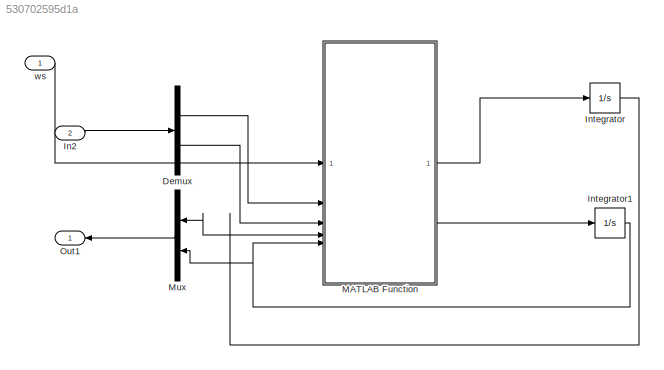
MODEL slx_530702595d1a
KIND model
CONFIG AbsTol = auto
CONFIG EnableMultiTasking = off
CONFIG FixedStep = auto
CONFIG MaxStep = auto
CONFIG MinStep = auto
CONFIG RelTol = 1e-3
CONFIG SampleTimeConstraint = Unconstrained
CONFIG SolverName = VariableStepAuto
CONFIG StartTime = 0.0
CONFIG StopTime = 10.0
BLOCK [Demux] Demux
  Outputs = 2
BLOCK [Inport] In2
  Port = 2
BLOCK [Integrator] Integrator
BLOCK [Integrator] Integrator1
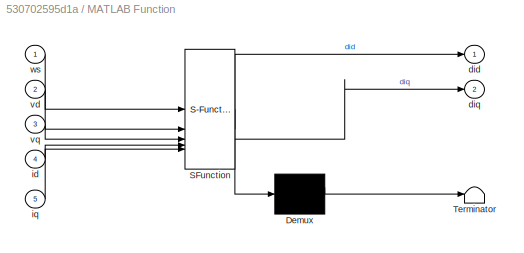
BLOCK [SubSystem] MATLAB Function
  ErrorFcn = Stateflow.Translate.translate
  PermitHierarchicalResolution = ExplicitOnly
  SFBlockType = MATLAB Function
  TreatAsAtomicUnit = on
BLOCK [Demux] MATLAB Function/ Demux 
  Outputs = 1
BLOCK [S-Function] MATLAB Function/ SFunction 
  EnableBusSupport = off
  FunctionName = sf_sfun
  PortCounts = [5 3]
  SFcnIsStateOwnerBlock = off
  SFunctionDeploymentMode = off
  Tag = Stateflow S-Function 2
BLOCK [Terminator] MATLAB Function/ Terminator 
BLOCK [Outport] MATLAB Function/did
BLOCK [Outport] MATLAB Function/diq
  Port = 2
BLOCK [Inport] MATLAB Function/id
  Port = 4
BLOCK [Inport] MATLAB Function/iq
  Port = 5
BLOCK [Inport] MATLAB Function/vd
  Port = 2
BLOCK [Inport] MATLAB Function/vq
  Port = 3
BLOCK [Inport] MATLAB Function/ws
BLOCK [Mux] Mux
  DisplayOption = bar
  Inputs = 2
BLOCK [Outport] Out1
BLOCK [Inport] ws
LINE Demux:1 -> MATLAB Function:2
LINE Demux:2 -> MATLAB Function:3
LINE In2:1 -> Demux:1
NET Integrator1:1 -> MATLAB Function:5, Mux:2
NET Integrator:1 -> MATLAB Function:4, Mux:1
LINE MATLAB Function:1 -> Integrator:1
LINE MATLAB Function:2 -> Integrator1:1
LINE Mux:1 -> Out1:1
LINE ws:1 -> MATLAB Function:1
note: NET lines group one-source signal fan-out (src -> all destinations, sorted); 1:1 wires keep LINE
CHART MATLAB Function states=1 transitions=1
  STATE_LABEL 'eML_blk_kernel()'
  STATE_LABEL 'SCRIPT:\nfunction [did,diq] = fcn(ws,vd,vq,id,iq)\nLd=1e-4;\nLq=1e-3;\nRs=0.00475;\nphi=0.23;\ndid=ws*(Lq/Ld)*iq-(Rs/Ld)*id+(1/Ld)*vd;\ndiq=-ws*(1/Lq)*phi-ws*(Ld/Lq)*id-(Rs/Lq)*iq+(1/Lq)*vq;\n\n'
CHART  states=0 transitions=0
